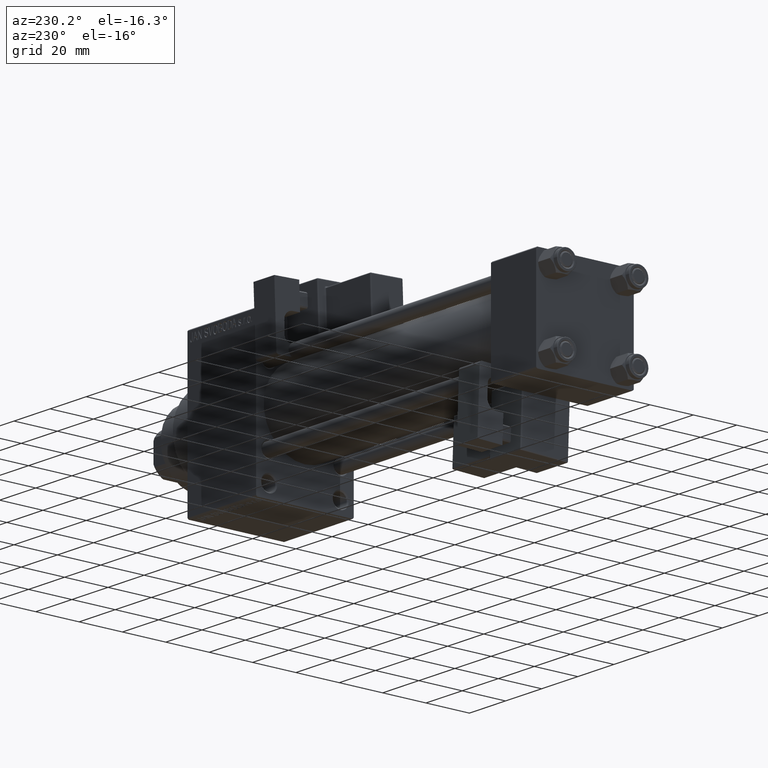
[diagram: clean part render]
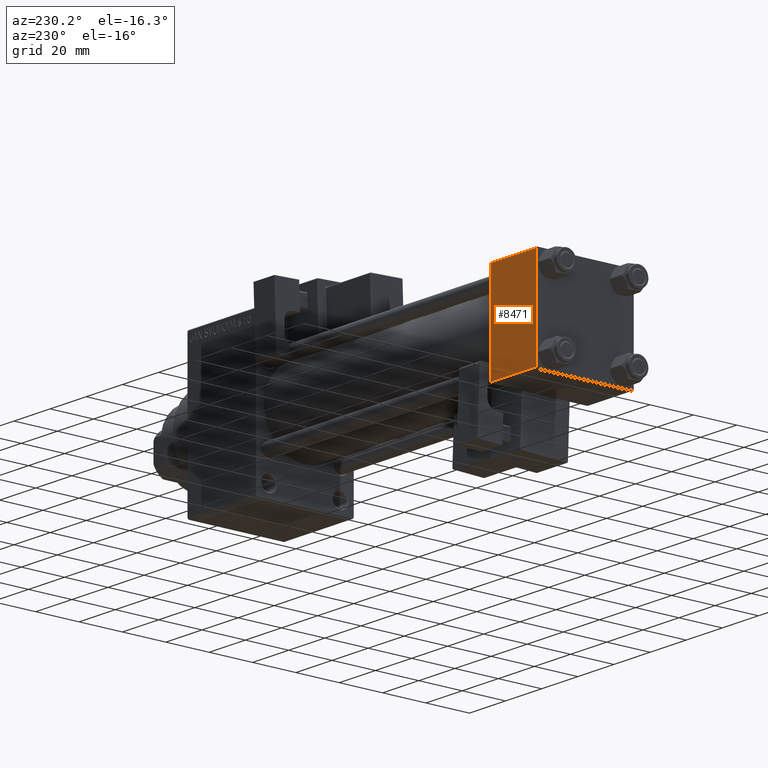
[diagram: same view with one face highlighted and labeled with its STEP entity id]
A machine part, auxiliary view. The second image highlights one B-rep face of the part: STEP entity #8471.
In plain terms, the highlighted planar face has unit normal (0, 1, 0).
Its self-contained STEP definition (entity closure, byte-faithful):
#179 = DIRECTION ( 'NONE',  ( -1.000000000000000000, 0.000000000000000000, 0.000000000000000000 ) ) ;
#474 = VECTOR ( 'NONE', #179, 1000.000000000000000 ) ;
#841 = DIRECTION ( 'NONE',  ( 0.000000000000000000, 0.000000000000000000, -1.000000000000000000 ) ) ;
#2219 = ORIENTED_EDGE ( 'NONE', *, *, #39153, .F. ) ;
#3927 = LINE ( 'NONE', #12161, #474 ) ;
#4595 = CARTESIAN_POINT ( 'NONE',  ( 25.00000000000000000, 22.50000000000000000, 22.50000000000000355 ) ) ;
#4875 = LINE ( 'NONE', #42125, #22452 ) ;
#6550 = DIRECTION ( 'NONE',  ( 0.000000000000000000, -0.000000000000000000, 1.000000000000000000 ) ) ;
#7689 = ORIENTED_EDGE ( 'NONE', *, *, #34082, .T. ) ;
#8471 = ADVANCED_FACE ( 'NONE', ( #49018 ), #26269, .T. ) ;
#9670 = CARTESIAN_POINT ( 'NONE',  ( 25.00000000000000000, 22.50000000000000000, 21.99999999999999645 ) ) ;
#11002 = VECTOR ( 'NONE', #15863, 1000.000000000000000 ) ;
#11151 = EDGE_CURVE ( 'NONE', #35092, #39765, #4875, .T. ) ;
#11378 = CARTESIAN_POINT ( 'NONE',  ( 0.000000000000000000, 22.50000000000000000, 22.50000000000000355 ) ) ;
#11865 = LINE ( 'NONE', #11378, #11002 ) ;
#12161 = CARTESIAN_POINT ( 'NONE',  ( 25.00000000000000000, 22.50000000000000000, -21.99999999999998224 ) ) ;
#12992 = CARTESIAN_POINT ( 'NONE',  ( 0.000000000000000000, 22.50000000000000000, -21.99999999999996803 ) ) ;
#13090 = CARTESIAN_POINT ( 'NONE',  ( 0.000000000000000000, 22.50000000000000000, 21.99999999999999645 ) ) ;
#13678 = EDGE_LOOP ( 'NONE', ( #7689, #20466, #2219, #29223 ) ) ;
#14477 = VERTEX_POINT ( 'NONE', #12992 ) ;
#15292 = AXIS2_PLACEMENT_3D ( 'NONE', #18043, #40794, #6550 ) ;
#15863 = DIRECTION ( 'NONE',  ( 0.000000000000000000, 0.000000000000000000, -1.000000000000000000 ) ) ;
#18043 = CARTESIAN_POINT ( 'NONE',  ( 25.00000000000000000, 22.50000000000000000, 22.50000000000000355 ) ) ;
#20466 = ORIENTED_EDGE ( 'NONE', *, *, #24962, .T. ) ;
#22335 = VECTOR ( 'NONE', #841, 1000.000000000000000 ) ;
#22452 = VECTOR ( 'NONE', #34870, 1000.000000000000000 ) ;
#23583 = CARTESIAN_POINT ( 'NONE',  ( 25.00000000000000000, 22.50000000000000000, -21.99999999999996803 ) ) ;
#24962 = EDGE_CURVE ( 'NONE', #34071, #14477, #3927, .T. ) ;
#26269 = PLANE ( 'NONE',  #15292 ) ;
#29223 = ORIENTED_EDGE ( 'NONE', *, *, #11151, .T. ) ;
#34071 = VERTEX_POINT ( 'NONE', #23583 ) ;
#34082 = EDGE_CURVE ( 'NONE', #39765, #34071, #38835, .T. ) ;
#34870 = DIRECTION ( 'NONE',  ( 1.000000000000000000, 0.000000000000000000, 0.000000000000000000 ) ) ;
#35092 = VERTEX_POINT ( 'NONE', #13090 ) ;
#38835 = LINE ( 'NONE', #4595, #22335 ) ;
#39153 = EDGE_CURVE ( 'NONE', #35092, #14477, #11865, .T. ) ;
#39765 = VERTEX_POINT ( 'NONE', #9670 ) ;
#40794 = DIRECTION ( 'NONE',  ( -0.000000000000000000, 1.000000000000000000, 0.000000000000000000 ) ) ;
#42125 = CARTESIAN_POINT ( 'NONE',  ( 25.00000000000000000, 22.50000000000000000, 21.99999999999999645 ) ) ;
#49018 = FACE_OUTER_BOUND ( 'NONE', #13678, .T. ) ;